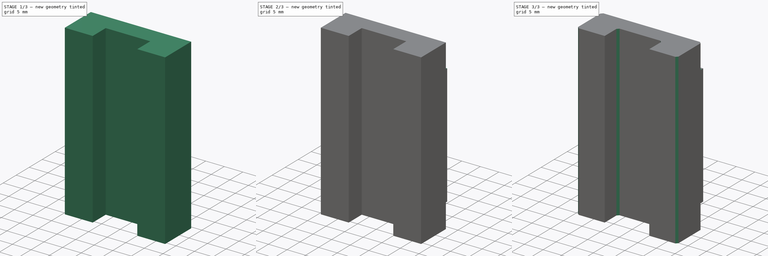
[diagram: build sequence overview — one tinted view per stage of 3, left to right]
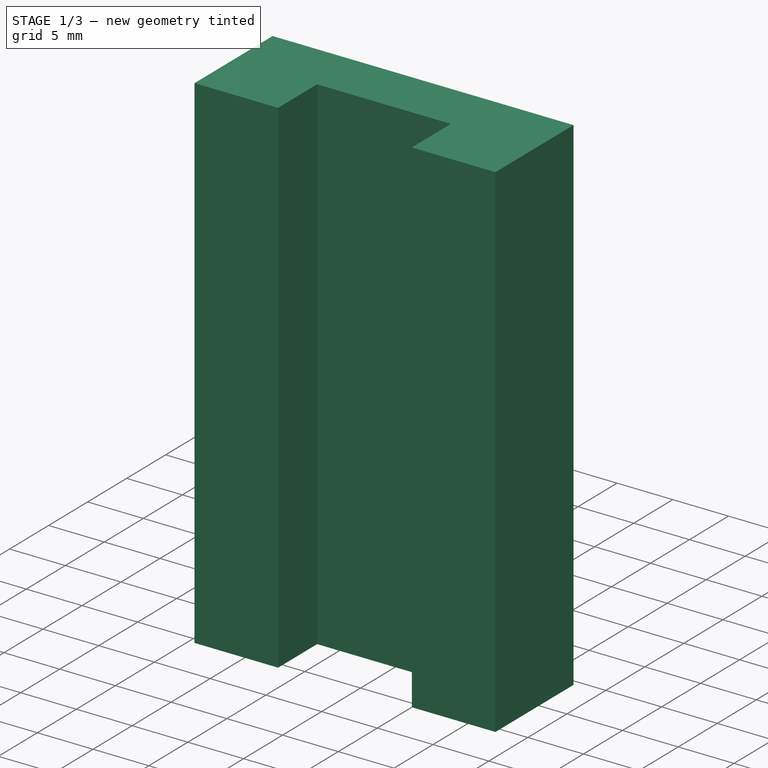
[diagram: stage 1 of 3 — iso view after this stage's code; geometry added in this stage tinted green]
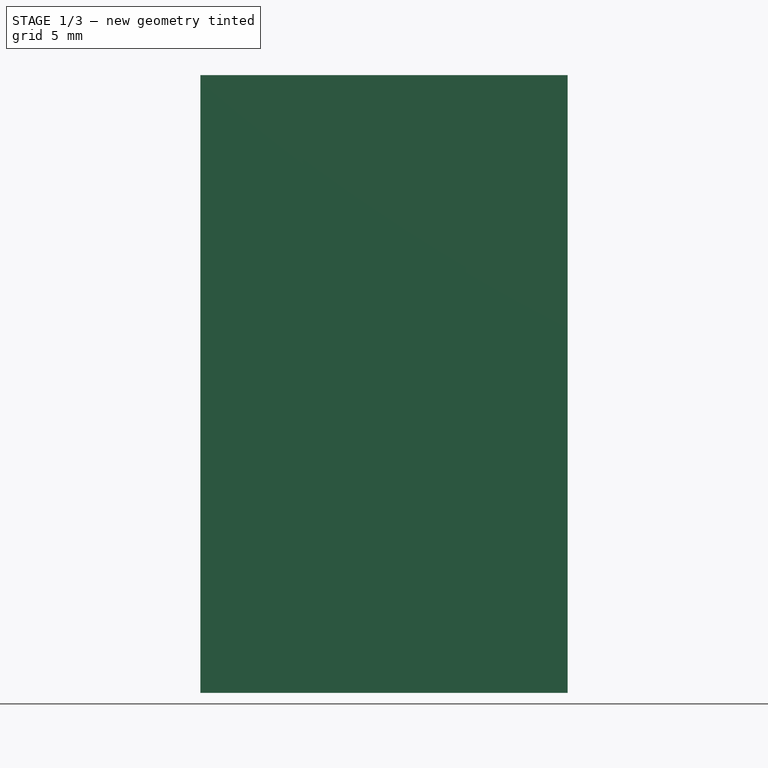
[diagram: stage 1 of 3 — front view after this stage's code; geometry added in this stage tinted green]
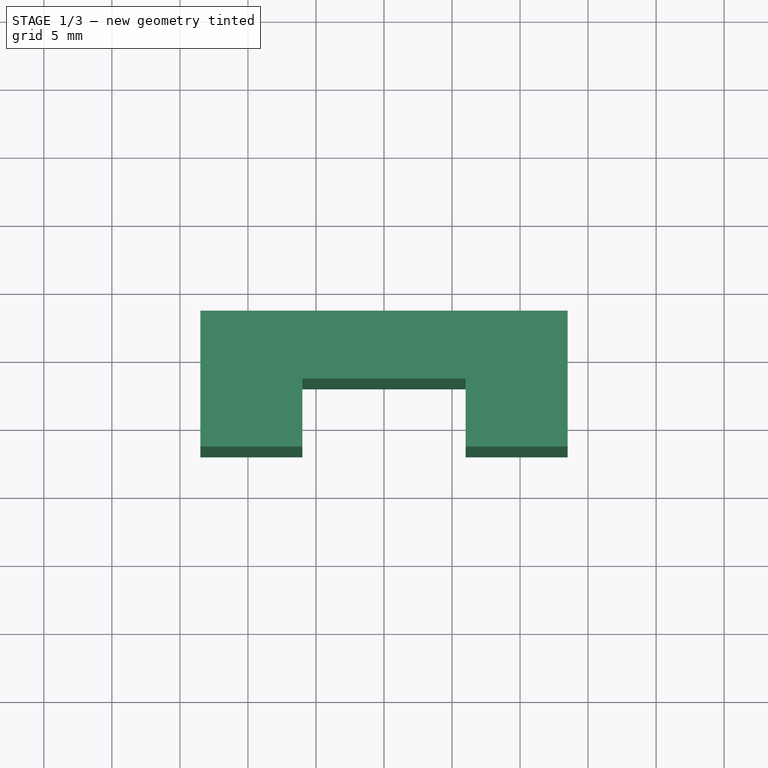
[diagram: stage 1 of 3 — top view after this stage's code; geometry added in this stage tinted green]
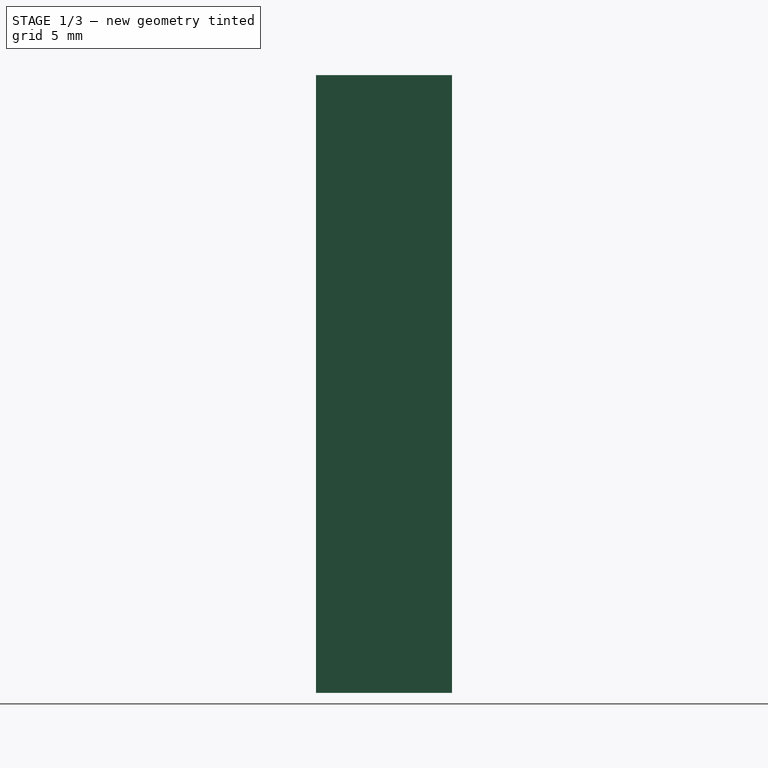
[diagram: stage 1 of 3 — right view after this stage's code; geometry added in this stage tinted green]
FCSTD DOCUMENT
Label: mgn12c
objects: Sketcher::SketchObject×4, PartDesign::Pocket×3, PartDesign::Chamfer×2, PartDesign::Pad×1
note: 14 computed .brp shape members not serialized (recipe doc carries the construction recipe); baked Part::Feature solids carry a one-line shape summary decoded from their .brp

FEATURE [Sketcher::SketchObject] Sketch
  sketch-geometry (4):
    g0: LineSegment StartX=-13.5 StartY=13 StartZ=0 EndX=13.5 EndY=13 EndZ=0
    g1: LineSegment StartX=13.5 StartY=13 StartZ=0 EndX=13.5 EndY=3 EndZ=0
    g2: LineSegment StartX=13.5 StartY=3 StartZ=0 EndX=-13.5 EndY=3 EndZ=0
    g3: LineSegment StartX=-13.5 StartY=3 StartZ=0 EndX=-13.5 EndY=13 EndZ=0
  constraints (12):
    c: Coincident(g0,g1)
    c: Coincident(g1,g2)
    c: Coincident(g2,g3)
    c: Coincident(g3,g0)
    c: Horizontal(g0)
    c: Horizontal(g2)
    c: Vertical(g1)
    c: Vertical(g3)
    c: Symmetric(g0,g0,g-2)
    c: DistanceY(g2,g0) = 10
    c: DistanceY(g-1,g2) = 3
    c: DistanceX(g0,g0) = 27
FEATURE [PartDesign::Pad] Pad
  Length = 45.4
  Length2 = 100
  Sketch = -> Sketch
  Type = 0
FEATURE [Sketcher::SketchObject] Sketch001
  Placement = pos=(0,0,45.4) rot=(0,0,1;0rad)
  Support = -> Pad [Face6]
  sketch-geometry (4):
    g0: LineSegment StartX=-6 StartY=8 StartZ=0 EndX=6 EndY=8 EndZ=0
    g1: LineSegment StartX=6 StartY=8 StartZ=0 EndX=6 EndY=0 EndZ=0
    g2: LineSegment StartX=6 StartY=0 StartZ=0 EndX=-6 EndY=0 EndZ=0
    g3: LineSegment StartX=-6 StartY=0 StartZ=0 EndX=-6 EndY=8 EndZ=0
  constraints (12):
    c: Coincident(g0,g1)
    c: Coincident(g1,g2)
    c: Coincident(g2,g3)
    c: Coincident(g3,g0)
    c: Horizontal(g0)
    c: Horizontal(g2)
    c: Vertical(g1)
    c: Vertical(g3)
    c: Symmetric(g2,g1,g-2)
    c: DistanceY(g0,g2) = -8
    c: PointOnObject(g-1,g2)
    c: DistanceX(g0,g0) = 12
FEATURE [PartDesign::Pocket] Pocket
  Length = 5
  Sketch = -> Sketch001
  Type = 1
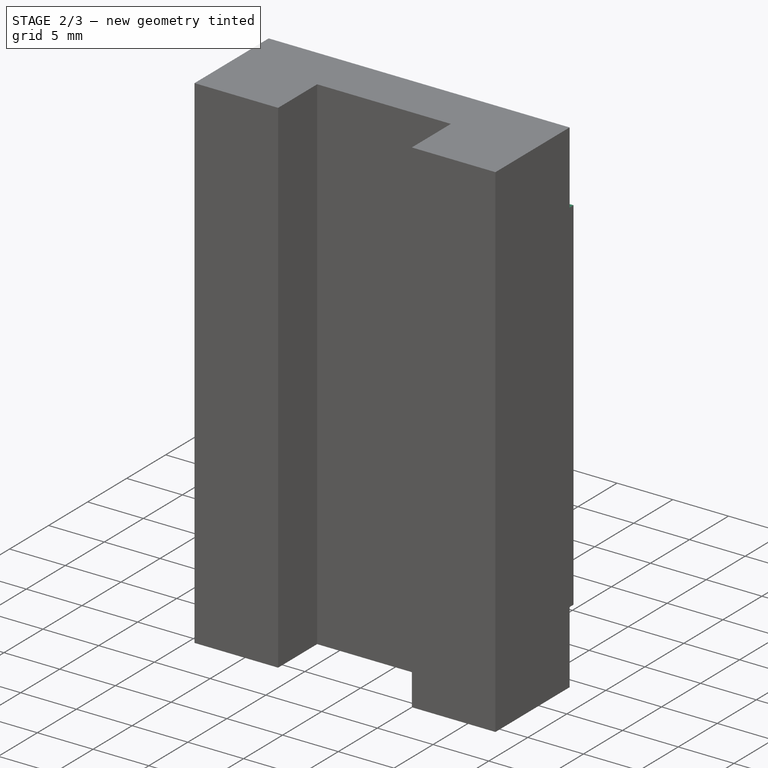
[diagram: stage 2 of 3 — iso view after this stage's code; geometry added in this stage tinted green]
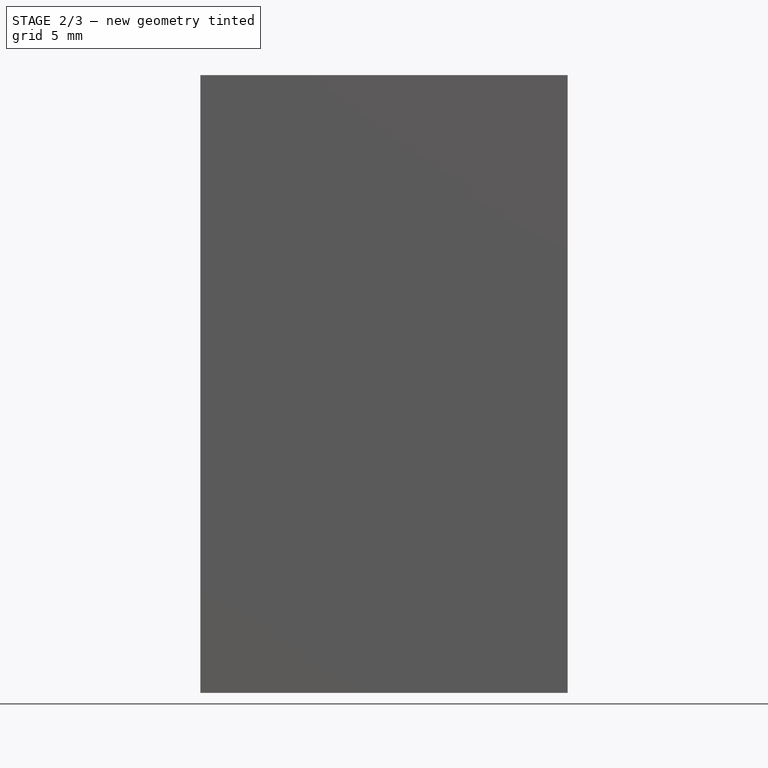
[diagram: stage 2 of 3 — front view after this stage's code; geometry added in this stage tinted green]
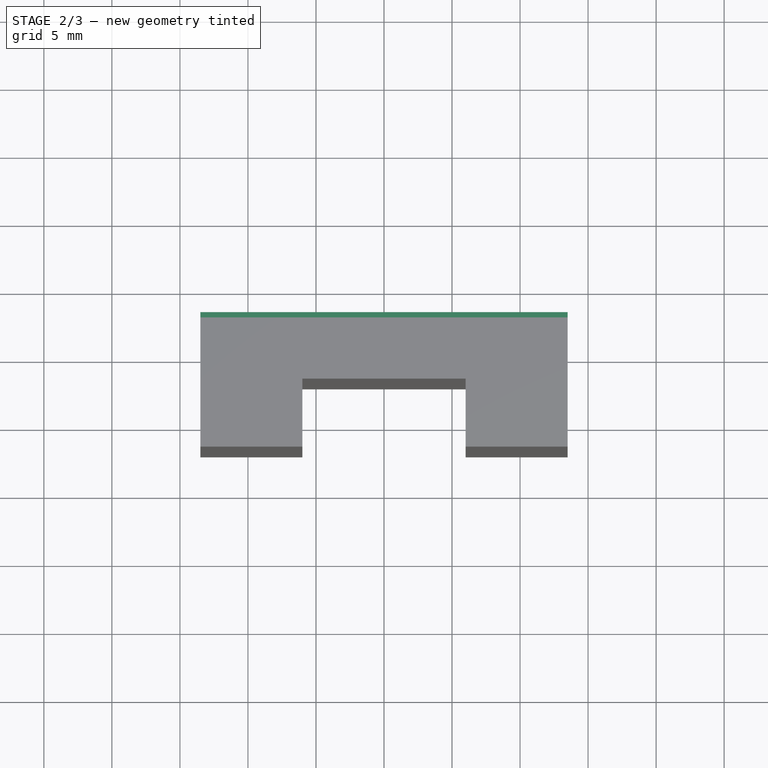
[diagram: stage 2 of 3 — top view after this stage's code; geometry added in this stage tinted green]
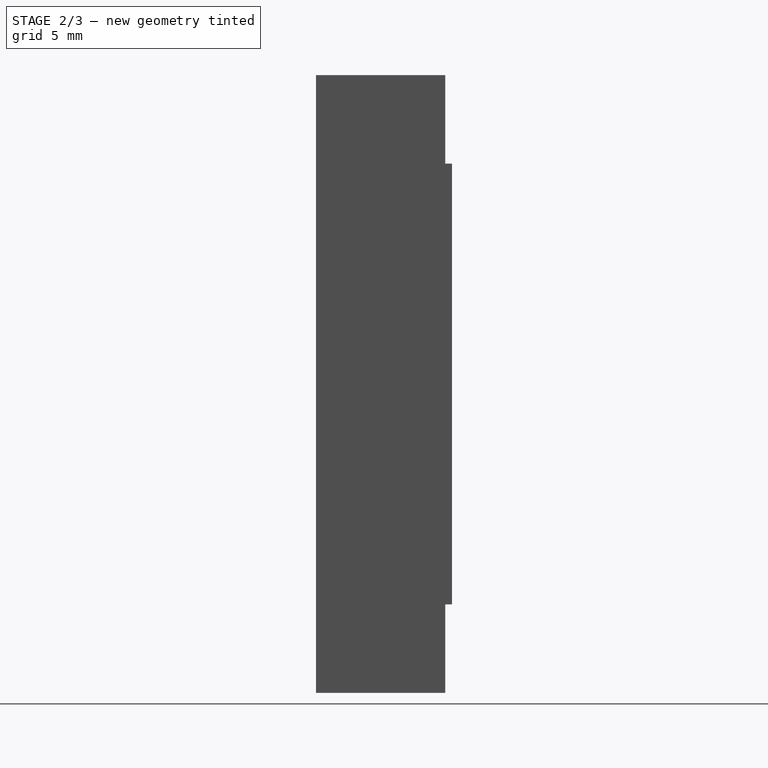
[diagram: stage 2 of 3 — right view after this stage's code; geometry added in this stage tinted green]
FEATURE [Sketcher::SketchObject] Sketch002
  ExternalGeometry = -> [Pocket]
  Placement = pos=(0,13,0) rot=(0,0.707107,0.707107;3.14159rad)
  Support = -> Pocket [Face1]
  sketch-geometry (9):
    g0: LineSegment [constr] StartX=-18.8695 StartY=22.7 StartZ=0 EndX=23.3313 EndY=22.7 EndZ=0
    g1: LineSegment [constr] StartX=-10 StartY=32.7 StartZ=0 EndX=10 EndY=32.7 EndZ=0
    g2: LineSegment [constr] StartX=10 StartY=32.7 StartZ=0 EndX=10 EndY=12.7 EndZ=0
    g3: LineSegment [constr] StartX=10 StartY=12.7 StartZ=0 EndX=-10 EndY=12.7 EndZ=0
    g4: LineSegment [constr] StartX=-10 StartY=12.7 StartZ=0 EndX=-10 EndY=32.7 EndZ=0
    g5: Circle CenterX=-10 CenterY=32.7 CenterZ=0 NormalX=0 NormalY=0 NormalZ=1 Radius=1.5
    g6: Circle CenterX=10 CenterY=32.7 CenterZ=0 NormalX=0 NormalY=0 NormalZ=1 Radius=1.5
    g7: Circle CenterX=10 CenterY=12.7 CenterZ=0 NormalX=0 NormalY=0 NormalZ=1 Radius=1.5
    g8: Circle CenterX=-10 CenterY=12.7 CenterZ=0 NormalX=0 NormalY=0 NormalZ=1 Radius=1.5
  constraints (22):
    c: Horizontal(g0)
    c: DistanceY(g-1,g0) = 22.7
    c: Coincident(g1,g2)
    c: Coincident(g2,g3)
    c: Coincident(g3,g4)
    c: Coincident(g4,g1)
    c: Horizontal(g1)
    c: Horizontal(g3)
    c: Vertical(g2)
    c: Vertical(g4)
    c: Symmetric(g1,g3,g0)
    c: DistanceY(g1,g2) = -20
    c: Symmetric(g1,g1,g-2)
    c: DistanceX(g-3,g1) = 3.5
    c: Coincident(g5,g1)
    c: Coincident(g6,g1)
    c: Coincident(g7,g2)
    c: Coincident(g8,g3)
    c: Radius(g5) = 1.5
    c: Radius(g6) = 1.5
    c: Radius(g7) = 1.5
    c: Radius(g8) = 1.5
FEATURE [PartDesign::Pocket] Pocket001
  Length = 3.5
  Sketch = -> Sketch002
  Type = 0
FEATURE [Sketcher::SketchObject] Sketch003
  ExternalGeometry = -> [Pocket001]
  Placement = pos=(0,13,0) rot=(0,0.707107,0.707107;3.14159rad)
  Support = -> Pocket001 [Face3]
  sketch-geometry (13):
    g0: LineSegment [constr] StartX=-17.1348 StartY=22.7 StartZ=0 EndX=19.6272 EndY=22.7 EndZ=0
    g1: LineSegment [constr] StartX=-16.2308 StartY=38.9 StartZ=0 EndX=17.1478 EndY=38.9 EndZ=0
    g2: LineSegment [constr] StartX=17.1478 StartY=38.9 StartZ=0 EndX=17.1478 EndY=6.5 EndZ=0
    g3: LineSegment [constr] StartX=17.1478 StartY=6.5 StartZ=0 EndX=-16.2308 EndY=6.5 EndZ=0
    g4: LineSegment [constr] StartX=-16.2308 StartY=6.5 StartZ=0 EndX=-16.2308 EndY=38.9 EndZ=0
    g5: LineSegment StartX=-16.2308 StartY=38.9 StartZ=0 EndX=17.1409 EndY=38.9 EndZ=0
    g6: LineSegment StartX=17.1409 StartY=38.9 StartZ=0 EndX=17.1409 EndY=47.5045 EndZ=0
    g7: LineSegment StartX=17.1409 StartY=47.5045 StartZ=0 EndX=-16.2308 EndY=47.5045 EndZ=0
    g8: LineSegment StartX=-16.2308 StartY=47.5045 StartZ=0 EndX=-16.2308 EndY=38.9 EndZ=0
    g9: LineSegment StartX=-16.2308 StartY=6.5 StartZ=0 EndX=17.1409 EndY=6.5 EndZ=0
    g10: LineSegment StartX=17.1409 StartY=6.5 StartZ=0 EndX=17.1409 EndY=-1.72714 EndZ=0
    g11: LineSegment StartX=17.1409 StartY=-1.72714 StartZ=0 EndX=-16.2308 EndY=-1.72714 EndZ=0
    g12: LineSegment StartX=-16.2308 StartY=-1.72714 StartZ=0 EndX=-16.2308 EndY=6.5 EndZ=0
  constraints (30):
    c: Horizontal(g0)
    c: DistanceY(g-1,g0) = 22.7
    c: Coincident(g1,g2)
    c: Coincident(g2,g3)
    c: Coincident(g3,g4)
    c: Coincident(g4,g1)
    c: Horizontal(g1)
    c: Horizontal(g3)
    c: Vertical(g2)
    c: Vertical(g4)
    c: Symmetric(g2,g1,g0)
    c: DistanceY(g2,g0) = 16.2
    c: Coincident(g5,g6)
    c: Coincident(g6,g7)
    c: Coincident(g7,g8)
    c: Coincident(g8,g5)
    c: Horizontal(g5)
    c: Horizontal(g7)
    c: Vertical(g6)
    c: Vertical(g8)
    c: Coincident(g5,g1)
    c: Coincident(g9,g10)
    c: Coincident(g10,g11)
    c: Coincident(g11,g12)
    c: Coincident(g12,g9)
    c: Horizontal(g9)
    c: Horizontal(g11)
    c: Vertical(g10)
    c: Vertical(g12)
    c: Coincident(g9,g3)
FEATURE [PartDesign::Pocket] Pocket002
  Length = 0.5
  Sketch = -> Sketch003
  Type = 0
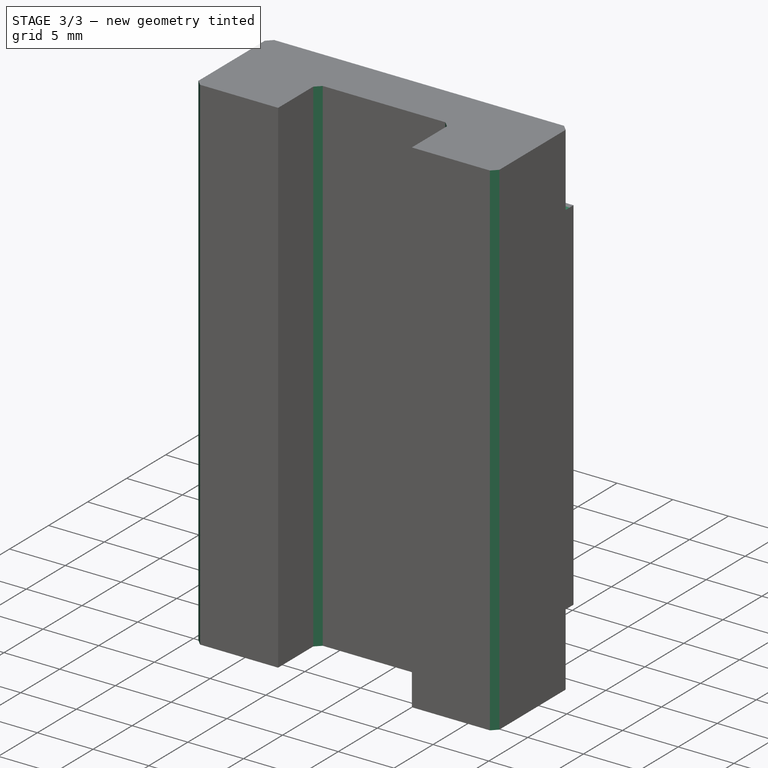
[diagram: stage 3 of 3 — iso view after this stage's code; geometry added in this stage tinted green]
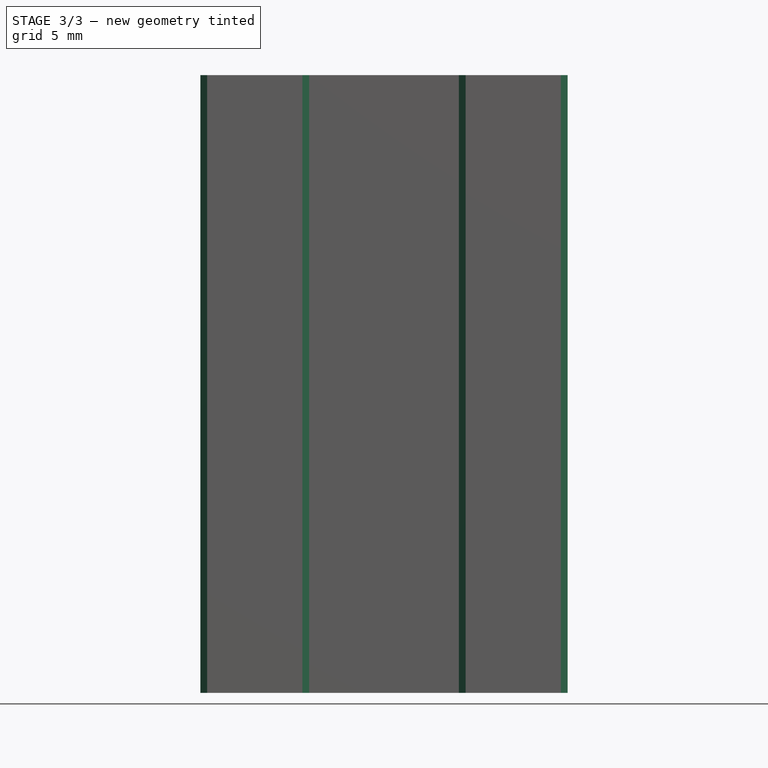
[diagram: stage 3 of 3 — front view after this stage's code; geometry added in this stage tinted green]
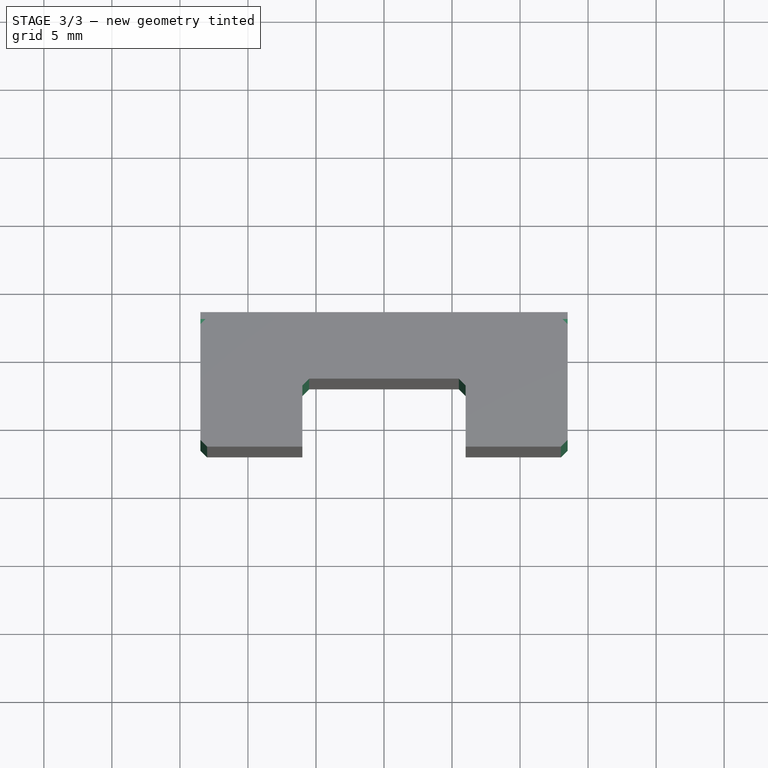
[diagram: stage 3 of 3 — top view after this stage's code; geometry added in this stage tinted green]
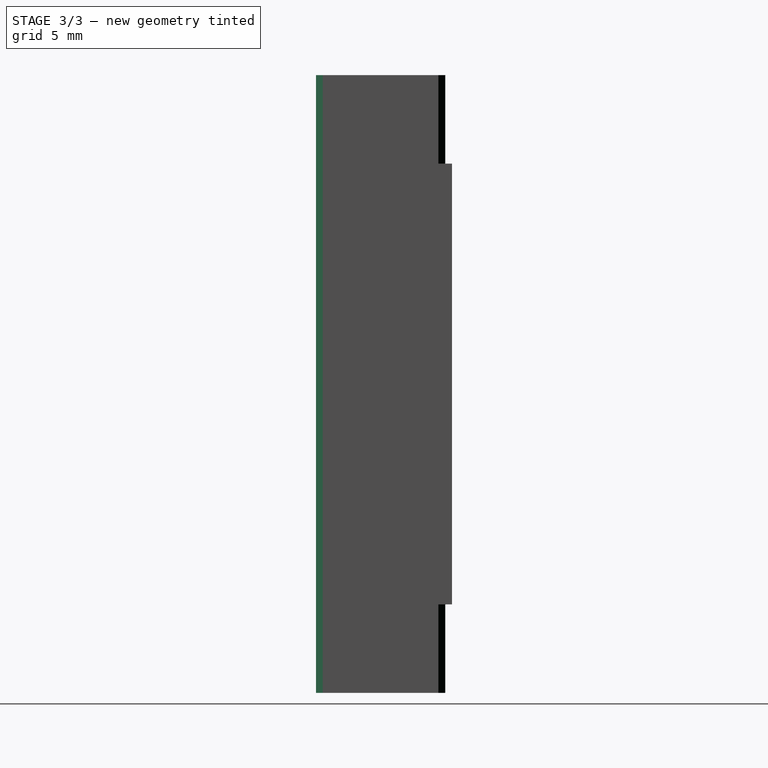
[diagram: stage 3 of 3 — right view after this stage's code; geometry added in this stage tinted green]
FEATURE [PartDesign::Chamfer] Chamfer
  Base = -> Pocket002 [Edge29,Edge30,Edge17,Edge3,Edge15,Edge31]
  Size = 0.5
FEATURE [PartDesign::Chamfer] Chamfer001
  Base = -> Chamfer [Edge19,Edge45]
  Size = 0.5
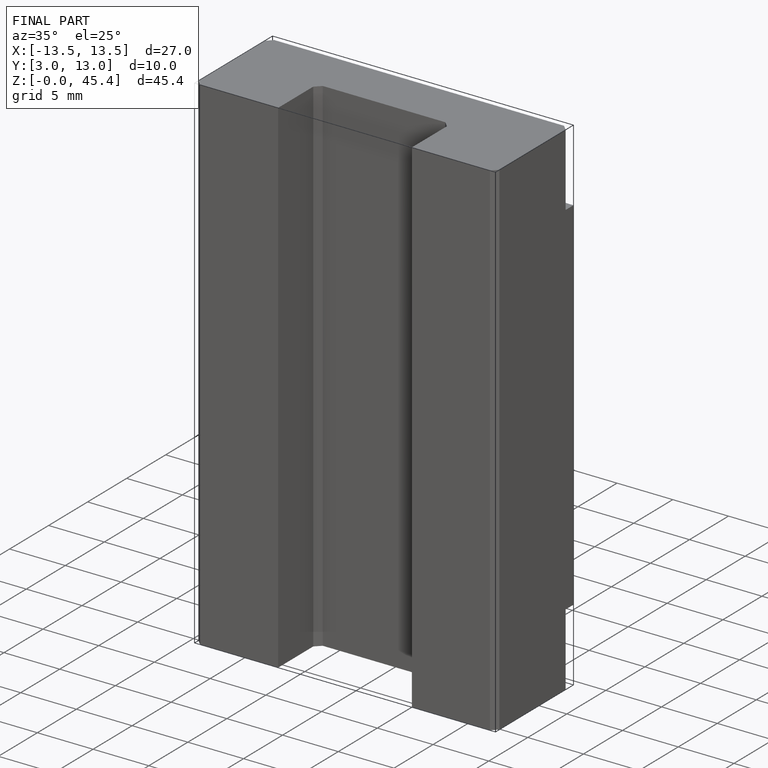
[diagram: finished part — iso view with bounding-box wireframe]
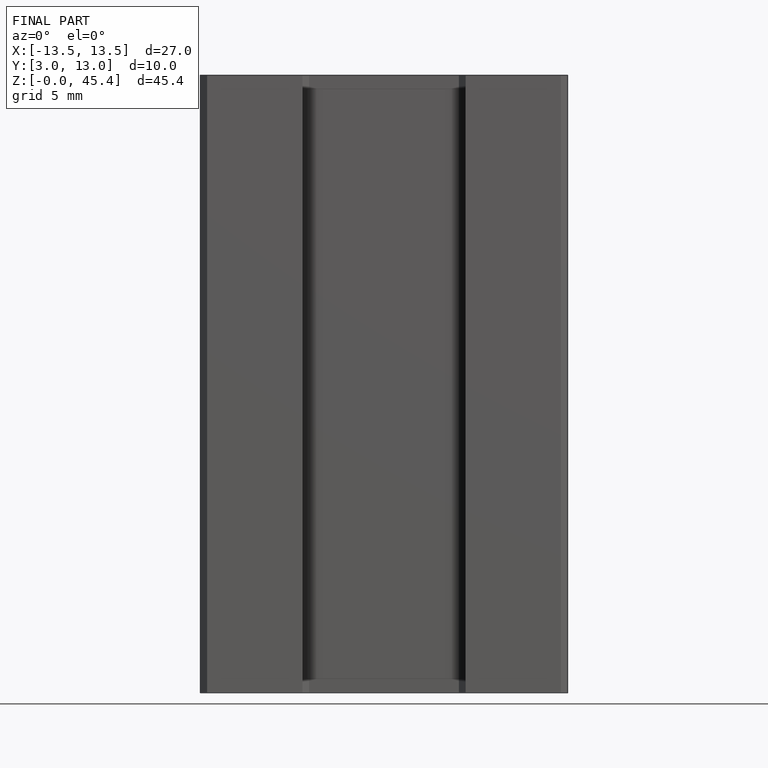
[diagram: finished part — front view with bounding-box wireframe]
